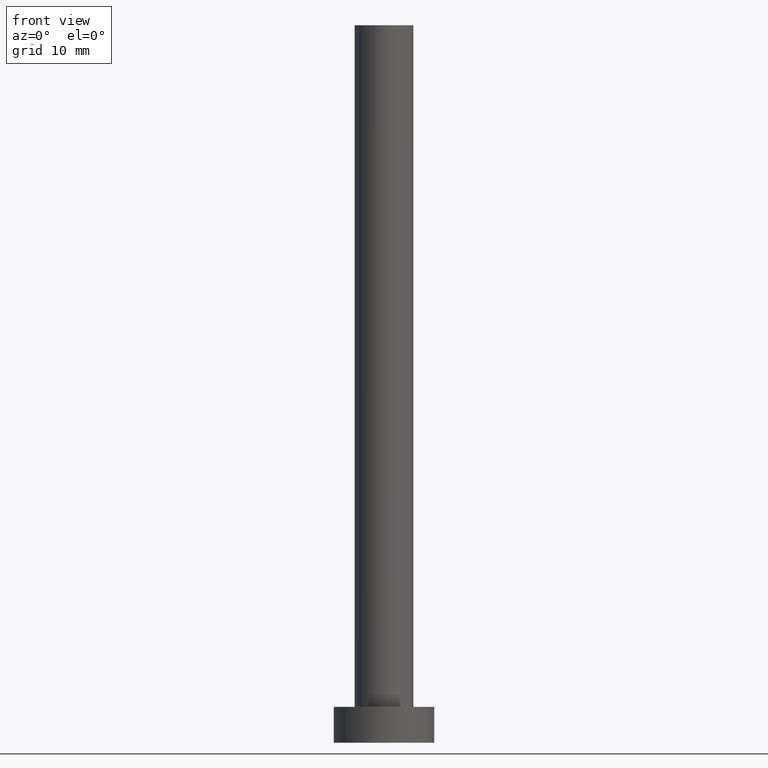
[diagram: clean part render]
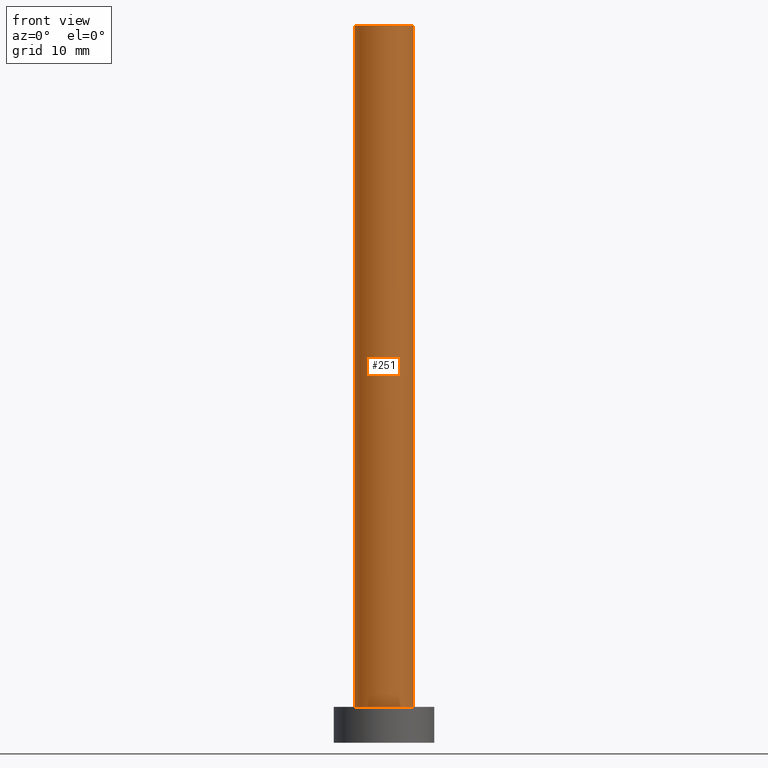
[diagram: same view with one face highlighted and labeled with its STEP entity id]
A machine part, front view. The second image highlights one B-rep face of the part: STEP entity #251.
In plain terms, the highlighted cylindrical surface (edge-blend (fillet) strip) has radius 4.1 mm, axis along (-0, -0, -1).
Its self-contained STEP definition (entity closure, byte-faithful):
#2 = CARTESIAN_POINT ( 'NONE',  ( 4.099999999999999645, 5.021051876504147385E-16, 100.0000000000000000 ) ) ;
#5 = DIRECTION ( 'NONE',  ( -0.000000000000000000, -0.000000000000000000, -1.000000000000000000 ) ) ;
#8 = VERTEX_POINT ( 'NONE', #2 ) ;
#15 = CARTESIAN_POINT ( 'NONE',  ( 4.099999999999999645, 5.021051876504147385E-16, 5.000000000000000000 ) ) ;
#20 = DIRECTION ( 'NONE',  ( -1.000000000000000000, 0.000000000000000000, 0.000000000000000000 ) ) ;
#32 = EDGE_CURVE ( 'NONE', #199, #224, #46, .T. ) ;
#35 = DIRECTION ( 'NONE',  ( -0.000000000000000000, -0.000000000000000000, -1.000000000000000000 ) ) ;
#37 = VECTOR ( 'NONE', #5, 1000.000000000000000 ) ;
#46 = LINE ( 'NONE', #62, #37 ) ;
#48 = AXIS2_PLACEMENT_3D ( 'NONE', #162, #67, #84 ) ;
#49 = EDGE_CURVE ( 'NONE', #199, #8, #220, .T. ) ;
#51 = EDGE_CURVE ( 'NONE', #224, #213, #167, .T. ) ;
#62 = CARTESIAN_POINT ( 'NONE',  ( -4.099999999999999645, 0.000000000000000000, 100.0000000000000000 ) ) ;
#67 = DIRECTION ( 'NONE',  ( 0.000000000000000000, 0.000000000000000000, 1.000000000000000000 ) ) ;
#68 = ORIENTED_EDGE ( 'NONE', *, *, #32, .T. ) ;
#75 = ORIENTED_EDGE ( 'NONE', *, *, #198, .F. ) ;
#84 = DIRECTION ( 'NONE',  ( 1.000000000000000000, 0.000000000000000000, 0.000000000000000000 ) ) ;
#91 = DIRECTION ( 'NONE',  ( 0.000000000000000000, 0.000000000000000000, 1.000000000000000000 ) ) ;
#122 = CYLINDRICAL_SURFACE ( 'NONE', #178, 4.099999999999999645 ) ;
#124 = DIRECTION ( 'NONE',  ( 1.000000000000000000, 0.000000000000000000, 0.000000000000000000 ) ) ;
#129 = CARTESIAN_POINT ( 'NONE',  ( -4.099999999999999645, 0.000000000000000000, 100.0000000000000000 ) ) ;
#132 = DIRECTION ( 'NONE',  ( -0.000000000000000000, -0.000000000000000000, -1.000000000000000000 ) ) ;
#162 = CARTESIAN_POINT ( 'NONE',  ( 0.000000000000000000, 0.000000000000000000, 5.000000000000000000 ) ) ;
#167 = CIRCLE ( 'NONE', #48, 4.099999999999999645 ) ;
#176 = CARTESIAN_POINT ( 'NONE',  ( 0.000000000000000000, 0.000000000000000000, 100.0000000000000000 ) ) ;
#178 = AXIS2_PLACEMENT_3D ( 'NONE', #176, #132, #20 ) ;
#180 = ORIENTED_EDGE ( 'NONE', *, *, #51, .T. ) ;
#188 = ORIENTED_EDGE ( 'NONE', *, *, #49, .F. ) ;
#197 = FACE_OUTER_BOUND ( 'NONE', #236, .T. ) ;
#198 = EDGE_CURVE ( 'NONE', #8, #213, #252, .T. ) ;
#199 = VERTEX_POINT ( 'NONE', #129 ) ;
#204 = AXIS2_PLACEMENT_3D ( 'NONE', #216, #91, #124 ) ;
#207 = CARTESIAN_POINT ( 'NONE',  ( -4.099999999999999645, 0.000000000000000000, 5.000000000000000000 ) ) ;
#208 = CARTESIAN_POINT ( 'NONE',  ( 4.099999999999999645, 5.021051876504147385E-16, 100.0000000000000000 ) ) ;
#213 = VERTEX_POINT ( 'NONE', #15 ) ;
#216 = CARTESIAN_POINT ( 'NONE',  ( 0.000000000000000000, 0.000000000000000000, 100.0000000000000000 ) ) ;
#217 = VECTOR ( 'NONE', #35, 1000.000000000000000 ) ;
#220 = CIRCLE ( 'NONE', #204, 4.099999999999999645 ) ;
#224 = VERTEX_POINT ( 'NONE', #207 ) ;
#236 = EDGE_LOOP ( 'NONE', ( #75, #188, #68, #180 ) ) ;
#251 = ADVANCED_FACE ( 'NONE', ( #197 ), #122, .T. ) ;
#252 = LINE ( 'NONE', #208, #217 ) ;